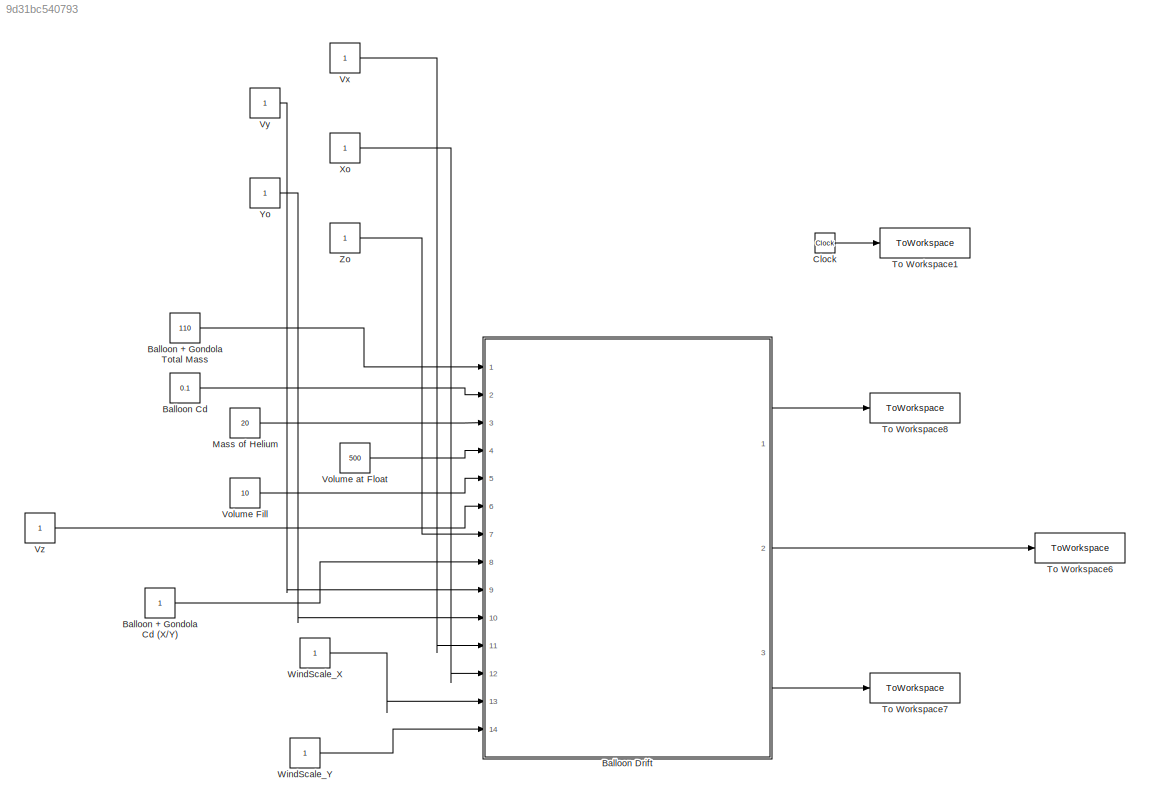
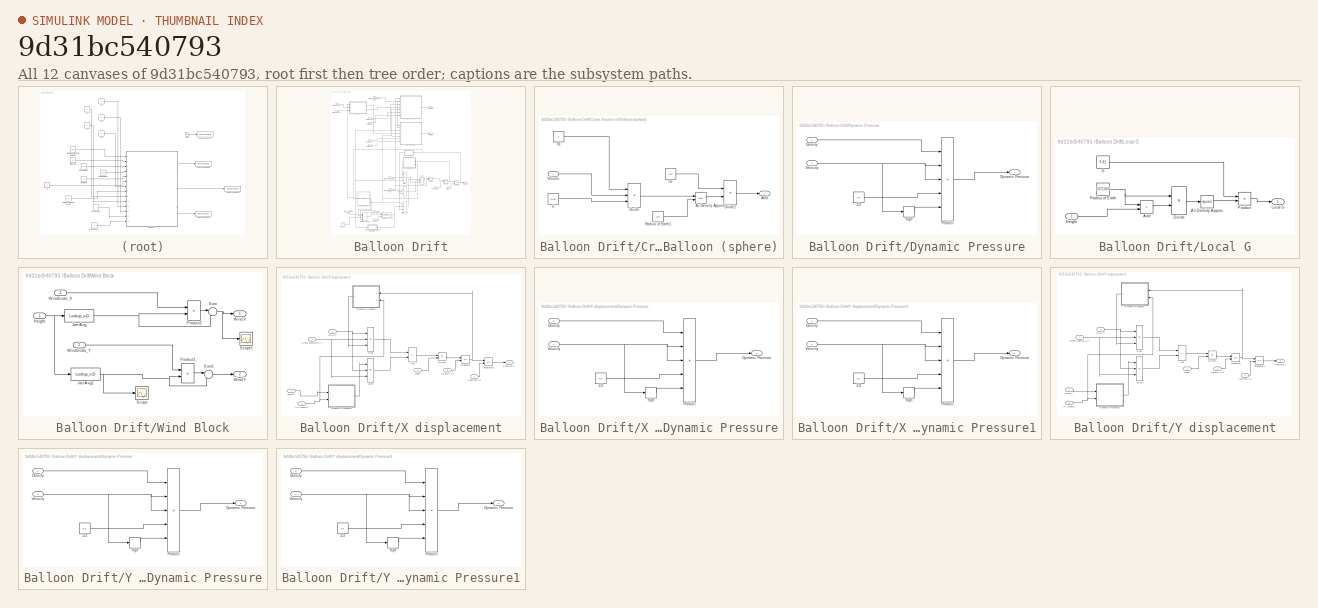
[diagram: thumbnail index - all 12 canvases of the model, root first then tree order]
MODEL slx_9d31bc540793
KIND model
CONFIG AbsTol = auto
CONFIG EnableMultiTasking = off
CONFIG FixedStep = 0.4
CONFIG MaxStep = auto
CONFIG MinStep = auto
CONFIG RelTol = 1e-3
CONFIG SampleTimeConstraint = Unconstrained
CONFIG Solver = VariableStepAuto
CONFIG SolverName = VariableStepAuto
CONFIG StartTime = 0.0
CONFIG StopTime = 1800
BLOCK [Constant] Balloon + Gondola Cd (X//Y)
BLOCK [Constant] Balloon + Gondola Total Mass
  Value = 110
BLOCK [Constant] Balloon Cd
  Value = 0.1
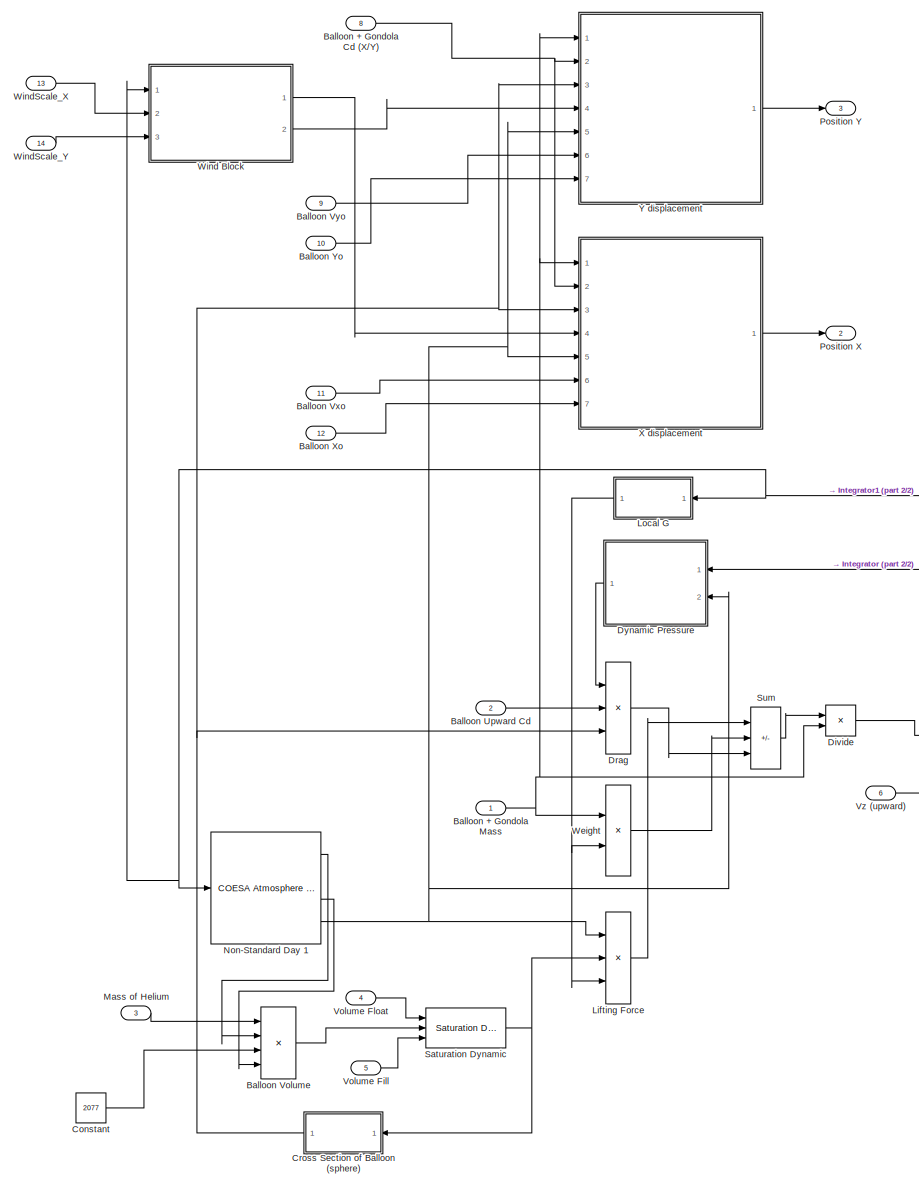
[diagram: Balloon Drift - part 1/2, most of the canvas]
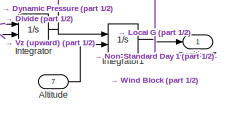
[diagram: Balloon Drift - part 2/2, middle right region]
BLOCK [SubSystem] Balloon Drift
  Ports = [14, 3]
  RequestExecContextInheritance = off
  TreatAsAtomicUnit = on
BLOCK [Inport] Balloon Drift/Altitude
  Port = 7
BLOCK [Inport] Balloon Drift/Balloon + Gondola Cd (X//Y)
  Port = 8
BLOCK [Inport] Balloon Drift/Balloon + Gondola Mass
BLOCK [Inport] Balloon Drift/Balloon Upward Cd
  Port = 2
BLOCK [Product] Balloon Drift/Balloon Volume
  Inputs = ***/
  Ports = [4, 1]
BLOCK [Inport] Balloon Drift/Balloon Vxo
  Port = 11
BLOCK [Inport] Balloon Drift/Balloon Vyo
  Port = 9
BLOCK [Inport] Balloon Drift/Balloon Xo
  Port = 12
BLOCK [Inport] Balloon Drift/Balloon Yo
  Port = 10
BLOCK [Constant] Balloon Drift/Constant
  Value = 2077
BLOCK [SubSystem] Balloon Drift/Cross Section of Balloon (sphere)
  Ports = [1, 1]
  RequestExecContextInheritance = off
BLOCK [Math] Balloon Drift/Cross Section of Balloon (sphere)/Air Density Approx.
  Operator = pow
  OutMax = 10000
  OutMin = 0
  Ports = [2, 1]
BLOCK [Outport] Balloon Drift/Cross Section of Balloon (sphere)/Area
  VectorParamsAs1DForOutWhenUnconnected = off
BLOCK [Product] Balloon Drift/Cross Section of Balloon (sphere)/Divide
  Inputs = **/
  Ports = [3, 1]
BLOCK [Product] Balloon Drift/Cross Section of Balloon (sphere)/Divide1
  Inputs = **
  Ports = [2, 1]
BLOCK [Constant] Balloon Drift/Cross Section of Balloon (sphere)/G
  Value = 12.56
BLOCK [Constant] Balloon Drift/Cross Section of Balloon (sphere)/G1
  Value = 3
BLOCK [Constant] Balloon Drift/Cross Section of Balloon (sphere)/G2
  Value = 3.14
BLOCK [Constant] Balloon Drift/Cross Section of Balloon (sphere)/Radius of Earth1
  Value = 2/3
BLOCK [Inport] Balloon Drift/Cross Section of Balloon (sphere)/Volume
BLOCK [Product] Balloon Drift/Divide
  Inputs = */
  Ports = [2, 1]
BLOCK [Product] Balloon Drift/Drag
  Inputs = 3
  Ports = [3, 1]
BLOCK [SubSystem] Balloon Drift/Dynamic Pressure
  Ports = [2, 1]
  RequestExecContextInheritance = off
  TreatAsAtomicUnit = on
BLOCK [Constant] Balloon Drift/Dynamic Pressure/1//2
  Value = 0.5
BLOCK [Inport] Balloon Drift/Dynamic Pressure/Density
  Port = 2
BLOCK [Outport] Balloon Drift/Dynamic Pressure/Dynamic Pressure
BLOCK [Product] Balloon Drift/Dynamic Pressure/Product
  Inputs = 5
  Ports = [5, 1]
BLOCK [Signum] Balloon Drift/Dynamic Pressure/Sign
BLOCK [Inport] Balloon Drift/Dynamic Pressure/Velocity 
BLOCK [Integrator] Balloon Drift/Integrator
  InitialConditionSource = external
  Ports = [2, 1]
BLOCK [Integrator] Balloon Drift/Integrator1
  InitialConditionSource = external
  Ports = [2, 1]
BLOCK [Product] Balloon Drift/Lifting Force
  Inputs = 3
  Ports = [3, 1]
BLOCK [SubSystem] Balloon Drift/Local G
  Ports = [1, 1]
  RequestExecContextInheritance = off
BLOCK [Sum] Balloon Drift/Local G/Add
  IconShape = rectangular
  Ports = [2, 1]
BLOCK [Math] Balloon Drift/Local G/Air Density Approx.
  Operator = square
  OutMax = 10000
  OutMin = 0
  Ports = [1, 1]
  SignedPower = on
BLOCK [Product] Balloon Drift/Local G/Divide
  Inputs = */
  Ports = [2, 1]
BLOCK [Constant] Balloon Drift/Local G/G
  Value = 9.81
BLOCK [Inport] Balloon Drift/Local G/Height
BLOCK [Outport] Balloon Drift/Local G/Local G
  VectorParamsAs1DForOutWhenUnconnected = off
BLOCK [Product] Balloon Drift/Local G/Product
  Ports = [2, 1]
BLOCK [Constant] Balloon Drift/Local G/Radius of Earth
  Value = 6371000
BLOCK [Inport] Balloon Drift/Mass of Helium
  Port = 3
BLOCK [Reference] Balloon Drift/Non-Standard Day 1  REF=aerolibatmos2/COESA Atmosphere Model
  Ports = [1, 4]
  SourceBlock = aerolibatmos2/COESA Atmosphere Model
  SourceProductBaseCode = AE
  SourceType = Atmosphere Model
BLOCK [Outport] Balloon Drift/Position X
  Port = 2
BLOCK [Outport] Balloon Drift/Position Y
  Port = 3
BLOCK [Outport] Balloon Drift/Position Z
BLOCK [Reference] Balloon Drift/Saturation Dynamic  REF=simulink/Discontinuities/Saturation
Dynamic
  Ports = [3, 1]
  SourceBlock = simulink/Discontinuities/Saturation\nDynamic
  SourceProductBaseCode = SL
  SourceType = Saturation Dynamic
BLOCK [Sum] Balloon Drift/Sum
  IconShape = rectangular
  Inputs = +--
  Ports = [3, 1]
BLOCK [Inport] Balloon Drift/Volume Fill
  Port = 5
BLOCK [Inport] Balloon Drift/Volume Float
  Port = 4
BLOCK [Inport] Balloon Drift/Vz (upward)
  Port = 6
BLOCK [Product] Balloon Drift/Weight
  Ports = [2, 1]
BLOCK [SubSystem] Balloon Drift/Wind Block
  Ports = [3, 2]
  RequestExecContextInheritance = off
  TreatAsAtomicUnit = on
BLOCK [Inport] Balloon Drift/Wind Block/Height
BLOCK [Lookup_n-D] Balloon Drift/Wind Block/Jan Avg
  BreakpointsForDimension1 = [0,5000,10000,15000,20000,24000,100000]
  ExtrapMethod = Clip
  IndexSearchMethod = Linear search
  InternalRulePriority = Speed
  InterpMethod = Cubic spline
  NumberOfTableDimensions = 1
  Ports = [1, 1]
  RndMeth = Simplest
  Table = [2,17,30,22,5,2,0]
  UseLastTableValue = on
BLOCK [Lookup_n-D] Balloon Drift/Wind Block/Jan Avg1
  BreakpointsForDimension1 = [0,5000,10000,15000,20000,24000,100000]
  ExtrapMethod = Clip
  InternalRulePriority = Speed
  InterpMethod = Cubic spline
  NumberOfTableDimensions = 1
  Ports = [1, 1]
  RndMeth = Simplest
  Table = [2,17,30,22,5,2,0]
  UseLastTableValue = on
BLOCK [Product] Balloon Drift/Wind Block/Product1
  Ports = [2, 1]
BLOCK [Product] Balloon Drift/Wind Block/Product2
  Ports = [2, 1]
BLOCK [Scope] Balloon Drift/Wind Block/Scope
  Floating = off
  NumInputPorts = 1
  Ports = [1]
  ScopeSpecificationString = Simulink.scopes.TimeScopeBlockCfg('CurrentConfiguration', extmgr.ConfigurationSet(extmgr.Configuration('Core','General UI',true),extmgr.Configuration('Core','Source UI',true),extmgr.Configuration('Sources','WiredSimulink',true,'DataLoggingVariableName','ScopeData10'),extmgr.Configuration('Visuals','Time Domain',true,'SerializedDisplays',{struct('MinYLimReal','-1.03996','MaxYLimReal','29.38818','YL...<+1405ch>
BLOCK [Scope] Balloon Drift/Wind Block/Scope1
  Floating = off
  NumInputPorts = 1
  Ports = [1]
  ScopeSpecificationString = Simulink.scopes.TimeScopeBlockCfg('CurrentConfiguration', extmgr.ConfigurationSet(extmgr.Configuration('Core','General UI',true),extmgr.Configuration('Core','Source UI',true),extmgr.Configuration('Sources','WiredSimulink',true,'DataLoggingVariableName','ScopeData11'),extmgr.Configuration('Visuals','Time Domain',true,'SerializedDisplays',{struct('MinYLimReal','-0.7338','MaxYLimReal','20.73634','YLa...<+1397ch>
BLOCK [Sum] Balloon Drift/Wind Block/Sum
  Inputs = |++
  Ports = [2, 1]
BLOCK [Sum] Balloon Drift/Wind Block/Sum1
  Inputs = |++
  Ports = [2, 1]
BLOCK [Outport] Balloon Drift/Wind Block/Wind X
BLOCK [Outport] Balloon Drift/Wind Block/Wind Y
  Port = 2
BLOCK [Inport] Balloon Drift/Wind Block/WindScale_X
  Port = 2
BLOCK [Inport] Balloon Drift/Wind Block/WindScale_Y
  Port = 3
BLOCK [Inport] Balloon Drift/WindScale_X
  Port = 13
BLOCK [Inport] Balloon Drift/WindScale_Y
  Port = 14
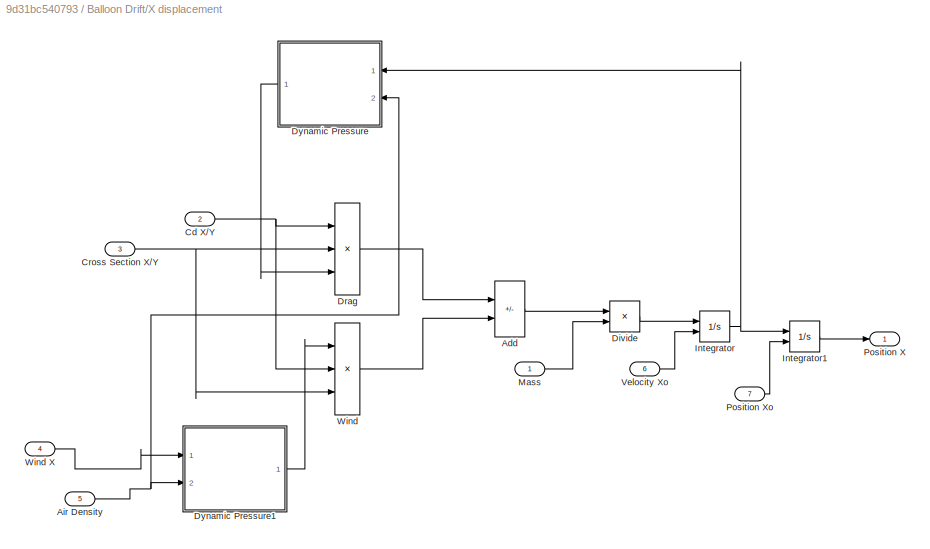
BLOCK [SubSystem] Balloon Drift/X displacement
  Ports = [7, 1]
  RequestExecContextInheritance = off
  TreatAsAtomicUnit = on
BLOCK [Sum] Balloon Drift/X displacement/Add
  IconShape = rectangular
  Inputs = -+
  Ports = [2, 1]
BLOCK [Inport] Balloon Drift/X displacement/Air Density
  Port = 5
BLOCK [Inport] Balloon Drift/X displacement/Cd X//Y
  Port = 2
BLOCK [Inport] Balloon Drift/X displacement/Cross Section X//Y
  Port = 3
BLOCK [Product] Balloon Drift/X displacement/Divide
  Inputs = */
  Ports = [2, 1]
BLOCK [Product] Balloon Drift/X displacement/Drag
  Inputs = 3
  Ports = [3, 1]
BLOCK [SubSystem] Balloon Drift/X displacement/Dynamic Pressure
  Ports = [2, 1]
  RequestExecContextInheritance = off
  TreatAsAtomicUnit = on
BLOCK [Constant] Balloon Drift/X displacement/Dynamic Pressure/1//2
  Value = 0.5
BLOCK [Inport] Balloon Drift/X displacement/Dynamic Pressure/Density
  Port = 2
BLOCK [Outport] Balloon Drift/X displacement/Dynamic Pressure/Dynamic Pressure
BLOCK [Product] Balloon Drift/X displacement/Dynamic Pressure/Product
  Inputs = 5
  Ports = [5, 1]
BLOCK [Signum] Balloon Drift/X displacement/Dynamic Pressure/Sign
BLOCK [Inport] Balloon Drift/X displacement/Dynamic Pressure/Velocity 
BLOCK [SubSystem] Balloon Drift/X displacement/Dynamic Pressure1
  Ports = [2, 1]
  RequestExecContextInheritance = off
  TreatAsAtomicUnit = on
BLOCK [Constant] Balloon Drift/X displacement/Dynamic Pressure1/1//2
  Value = 0.5
BLOCK [Inport] Balloon Drift/X displacement/Dynamic Pressure1/Density
  Port = 2
BLOCK [Outport] Balloon Drift/X displacement/Dynamic Pressure1/Dynamic Pressure
BLOCK [Product] Balloon Drift/X displacement/Dynamic Pressure1/Product
  Inputs = 5
  Ports = [5, 1]
BLOCK [Signum] Balloon Drift/X displacement/Dynamic Pressure1/Sign
BLOCK [Inport] Balloon Drift/X displacement/Dynamic Pressure1/Velocity 
BLOCK [Integrator] Balloon Drift/X displacement/Integrator
  InitialConditionSource = external
  Ports = [2, 1]
BLOCK [Integrator] Balloon Drift/X displacement/Integrator1
  InitialConditionSource = external
  Ports = [2, 1]
BLOCK [Inport] Balloon Drift/X displacement/Mass
BLOCK [Outport] Balloon Drift/X displacement/Position X
BLOCK [Inport] Balloon Drift/X displacement/Position Xo
  Port = 7
BLOCK [Inport] Balloon Drift/X displacement/Velocity Xo
  Port = 6
BLOCK [Product] Balloon Drift/X displacement/Wind
  Inputs = 3
  Ports = [3, 1]
BLOCK [Inport] Balloon Drift/X displacement/Wind X
  Port = 4
BLOCK [SubSystem] Balloon Drift/Y displacement
  Ports = [7, 1]
  RequestExecContextInheritance = off
  TreatAsAtomicUnit = on
BLOCK [Sum] Balloon Drift/Y displacement/Add
  IconShape = rectangular
  Inputs = -+
  Ports = [2, 1]
BLOCK [Inport] Balloon Drift/Y displacement/Air Density
  Port = 5
BLOCK [Inport] Balloon Drift/Y displacement/Cd X//Y
  Port = 2
BLOCK [Inport] Balloon Drift/Y displacement/Cross Section X//Y
  Port = 3
BLOCK [Product] Balloon Drift/Y displacement/Divide
  Inputs = */
  Ports = [2, 1]
BLOCK [Product] Balloon Drift/Y displacement/Drag
  Inputs = 3
  Ports = [3, 1]
BLOCK [SubSystem] Balloon Drift/Y displacement/Dynamic Pressure
  Ports = [2, 1]
  RequestExecContextInheritance = off
  TreatAsAtomicUnit = on
BLOCK [Constant] Balloon Drift/Y displacement/Dynamic Pressure/1//2
  Value = 0.5
BLOCK [Inport] Balloon Drift/Y displacement/Dynamic Pressure/Density
  Port = 2
BLOCK [Outport] Balloon Drift/Y displacement/Dynamic Pressure/Dynamic Pressure
BLOCK [Product] Balloon Drift/Y displacement/Dynamic Pressure/Product
  Inputs = 5
  Ports = [5, 1]
BLOCK [Signum] Balloon Drift/Y displacement/Dynamic Pressure/Sign
BLOCK [Inport] Balloon Drift/Y displacement/Dynamic Pressure/Velocity 
BLOCK [SubSystem] Balloon Drift/Y displacement/Dynamic Pressure1
  Ports = [2, 1]
  RequestExecContextInheritance = off
  TreatAsAtomicUnit = on
BLOCK [Constant] Balloon Drift/Y displacement/Dynamic Pressure1/1//2
  Value = 0.5
BLOCK [Inport] Balloon Drift/Y displacement/Dynamic Pressure1/Density
  Port = 2
BLOCK [Outport] Balloon Drift/Y displacement/Dynamic Pressure1/Dynamic Pressure
BLOCK [Product] Balloon Drift/Y displacement/Dynamic Pressure1/Product
  Inputs = 5
  Ports = [5, 1]
BLOCK [Signum] Balloon Drift/Y displacement/Dynamic Pressure1/Sign
BLOCK [Inport] Balloon Drift/Y displacement/Dynamic Pressure1/Velocity 
BLOCK [Integrator] Balloon Drift/Y displacement/Integrator
  InitialConditionSource = external
  Ports = [2, 1]
BLOCK [Integrator] Balloon Drift/Y displacement/Integrator1
  InitialConditionSource = external
  Ports = [2, 1]
BLOCK [Inport] Balloon Drift/Y displacement/Mass
BLOCK [Outport] Balloon Drift/Y displacement/Position Y
BLOCK [Inport] Balloon Drift/Y displacement/Position Yo
  Port = 7
BLOCK [Inport] Balloon Drift/Y displacement/Velocity Yo
  Port = 6
BLOCK [Product] Balloon Drift/Y displacement/Wind
  Inputs = 3
  Ports = [3, 1]
BLOCK [Inport] Balloon Drift/Y displacement/Wind Y
  Port = 4
BLOCK [Clock] Clock
BLOCK [Constant] Mass of Helium
  Value = 20
BLOCK [ToWorkspace] To Workspace1
  FixptAsFi = on
  MaxDataPoints = inf
  Ports = [1]
  SampleTime = -1
  VariableName = Balloon_Time
BLOCK [ToWorkspace] To Workspace6
  FixptAsFi = on
  MaxDataPoints = inf
  Ports = [1]
  SampleTime = -1
  VariableName = Balloon_X
BLOCK [ToWorkspace] To Workspace7
  FixptAsFi = on
  MaxDataPoints = inf
  Ports = [1]
  SampleTime = -1
  VariableName = Balloon_Y
BLOCK [ToWorkspace] To Workspace8
  FixptAsFi = on
  MaxDataPoints = inf
  Ports = [1]
  SampleTime = -1
  VariableName = Balloon_Z
BLOCK [Constant] Volume Fill
  Value = 10
BLOCK [Constant] Volume at Float
  Value = 500
BLOCK [Constant] Vx
BLOCK [Constant] Vy
BLOCK [Constant] Vz
BLOCK [Constant] WindScale_X
BLOCK [Constant] WindScale_Y
BLOCK [Constant] Xo
BLOCK [Constant] Yo
BLOCK [Constant] Zo
LINE Balloon + Gondola Cd (X//Y):1 -> Balloon Drift:8
LINE Balloon + Gondola Total Mass:1 -> Balloon Drift:1
LINE Balloon Cd:1 -> Balloon Drift:2
LINE Balloon Drift/Altitude:1 -> Balloon Drift/Integrator1:2
NET Balloon Drift/Balloon + Gondola Cd (X//Y):1 -> Balloon Drift/X displacement:2, Balloon Drift/Y displacement:2
NET Balloon Drift/Balloon + Gondola Mass:1 -> Balloon Drift/Divide:2, Balloon Drift/Weight:1, Balloon Drift/X displacement:1, Balloon Drift/Y displacement:1
LINE Balloon Drift/Balloon Upward Cd:1 -> Balloon Drift/Drag:2
LINE Balloon Drift/Balloon Volume:1 -> Balloon Drift/Saturation Dynamic:2
LINE Balloon Drift/Balloon Vxo:1 -> Balloon Drift/X displacement:6
LINE Balloon Drift/Balloon Vyo:1 -> Balloon Drift/Y displacement:6
LINE Balloon Drift/Balloon Xo:1 -> Balloon Drift/X displacement:7
LINE Balloon Drift/Balloon Yo:1 -> Balloon Drift/Y displacement:7
LINE Balloon Drift/Constant:1 -> Balloon Drift/Balloon Volume:3
LINE Balloon Drift/Cross Section of Balloon (sphere)/Air Density Approx.:1 -> Balloon Drift/Cross Section of Balloon (sphere)/Divide1:2
LINE Balloon Drift/Cross Section of Balloon (sphere)/Divide1:1 -> Balloon Drift/Cross Section of Balloon (sphere)/Area:1
LINE Balloon Drift/Cross Section of Balloon (sphere)/Divide:1 -> Balloon Drift/Cross Section of Balloon (sphere)/Air Density Approx.:1
LINE Balloon Drift/Cross Section of Balloon (sphere)/G1:1 -> Balloon Drift/Cross Section of Balloon (sphere)/Divide:1
LINE Balloon Drift/Cross Section of Balloon (sphere)/G2:1 -> Balloon Drift/Cross Section of Balloon (sphere)/Divide1:1
LINE Balloon Drift/Cross Section of Balloon (sphere)/G:1 -> Balloon Drift/Cross Section of Balloon (sphere)/Divide:3
LINE Balloon Drift/Cross Section of Balloon (sphere)/Radius of Earth1:1 -> Balloon Drift/Cross Section of Balloon (sphere)/Air Density Approx.:2
LINE Balloon Drift/Cross Section of Balloon (sphere)/Volume:1 -> Balloon Drift/Cross Section of Balloon (sphere)/Divide:2
NET Balloon Drift/Cross Section of Balloon (sphere):1 -> Balloon Drift/Drag:3, Balloon Drift/X displacement:3, Balloon Drift/Y displacement:3
LINE Balloon Drift/Divide:1 -> Balloon Drift/Integrator:1
LINE Balloon Drift/Drag:1 -> Balloon Drift/Sum:3
LINE Balloon Drift/Dynamic Pressure/1//2:1 -> Balloon Drift/Dynamic Pressure/Product:4
LINE Balloon Drift/Dynamic Pressure/Density:1 -> Balloon Drift/Dynamic Pressure/Product:1
LINE Balloon Drift/Dynamic Pressure/Product:1 -> Balloon Drift/Dynamic Pressure/Dynamic Pressure:1
LINE Balloon Drift/Dynamic Pressure/Sign:1 -> Balloon Drift/Dynamic Pressure/Product:5
NET Balloon Drift/Dynamic Pressure/Velocity :1 -> Balloon Drift/Dynamic Pressure/Product:2, Balloon Drift/Dynamic Pressure/Product:3, Balloon Drift/Dynamic Pressure/Sign:1
LINE Balloon Drift/Dynamic Pressure:1 -> Balloon Drift/Drag:1
NET Balloon Drift/Integrator1:1 -> Balloon Drift/Local G:1, Balloon Drift/Non-Standard Day 1:1, Balloon Drift/Position Z:1, Balloon Drift/Wind Block:1
NET Balloon Drift/Integrator:1 -> Balloon Drift/Dynamic Pressure:1, Balloon Drift/Integrator1:1
LINE Balloon Drift/Lifting Force:1 -> Balloon Drift/Sum:1
LINE Balloon Drift/Local G/Add:1 -> Balloon Drift/Local G/Divide:2
LINE Balloon Drift/Local G/Air Density Approx.:1 -> Balloon Drift/Local G/Product:2
LINE Balloon Drift/Local G/Divide:1 -> Balloon Drift/Local G/Air Density Approx.:1
LINE Balloon Drift/Local G/G:1 -> Balloon Drift/Local G/Product:1
LINE Balloon Drift/Local G/Height:1 -> Balloon Drift/Local G/Add:2
LINE Balloon Drift/Local G/Product:1 -> Balloon Drift/Local G/Local G:1
NET Balloon Drift/Local G/Radius of Earth:1 -> Balloon Drift/Local G/Add:1, Balloon Drift/Local G/Divide:1
NET Balloon Drift/Local G:1 -> Balloon Drift/Lifting Force:3, Balloon Drift/Weight:2
LINE Balloon Drift/Mass of Helium:1 -> Balloon Drift/Balloon Volume:1
LINE Balloon Drift/Non-Standard Day 1:1 -> Balloon Drift/Balloon Volume:2
LINE Balloon Drift/Non-Standard Day 1:3 -> Balloon Drift/Balloon Volume:4
NET Balloon Drift/Non-Standard Day 1:4 -> Balloon Drift/Dynamic Pressure:2, Balloon Drift/Lifting Force:1, Balloon Drift/X displacement:5, Balloon Drift/Y displacement:5
NET Balloon Drift/Saturation Dynamic:1 -> Balloon Drift/Cross Section of Balloon (sphere):1, Balloon Drift/Lifting Force:2
LINE Balloon Drift/Sum:1 -> Balloon Drift/Divide:1
LINE Balloon Drift/Volume Fill:1 -> Balloon Drift/Saturation Dynamic:3
LINE Balloon Drift/Volume Float:1 -> Balloon Drift/Saturation Dynamic:1
LINE Balloon Drift/Vz (upward):1 -> Balloon Drift/Integrator:2
LINE Balloon Drift/Weight:1 -> Balloon Drift/Sum:2
NET Balloon Drift/Wind Block/Height:1 -> Balloon Drift/Wind Block/Jan Avg1:1, Balloon Drift/Wind Block/Jan Avg:1
NET Balloon Drift/Wind Block/Jan Avg1:1 -> Balloon Drift/Wind Block/Product1:2, Balloon Drift/Wind Block/Scope:1, Balloon Drift/Wind Block/Sum1:2
NET Balloon Drift/Wind Block/Jan Avg:1 -> Balloon Drift/Wind Block/Product2:2, Balloon Drift/Wind Block/Sum:2
LINE Balloon Drift/Wind Block/Product1:1 -> Balloon Drift/Wind Block/Sum1:1
LINE Balloon Drift/Wind Block/Product2:1 -> Balloon Drift/Wind Block/Sum:1
LINE Balloon Drift/Wind Block/Sum1:1 -> Balloon Drift/Wind Block/Wind Y:1
NET Balloon Drift/Wind Block/Sum:1 -> Balloon Drift/Wind Block/Scope1:1, Balloon Drift/Wind Block/Wind X:1
LINE Balloon Drift/Wind Block/WindScale_X:1 -> Balloon Drift/Wind Block/Product2:1
LINE Balloon Drift/Wind Block/WindScale_Y:1 -> Balloon Drift/Wind Block/Product1:1
LINE Balloon Drift/Wind Block:1 -> Balloon Drift/X displacement:4
LINE Balloon Drift/Wind Block:2 -> Balloon Drift/Y displacement:4
LINE Balloon Drift/WindScale_X:1 -> Balloon Drift/Wind Block:2
LINE Balloon Drift/WindScale_Y:1 -> Balloon Drift/Wind Block:3
LINE Balloon Drift/X displacement/Add:1 -> Balloon Drift/X displacement/Divide:1
NET Balloon Drift/X displacement/Air Density:1 -> Balloon Drift/X displacement/Dynamic Pressure1:2, Balloon Drift/X displacement/Dynamic Pressure:2
NET Balloon Drift/X displacement/Cd X//Y:1 -> Balloon Drift/X displacement/Drag:1, Balloon Drift/X displacement/Wind:2
NET Balloon Drift/X displacement/Cross Section X//Y:1 -> Balloon Drift/X displacement/Drag:2, Balloon Drift/X displacement/Wind:3
LINE Balloon Drift/X displacement/Divide:1 -> Balloon Drift/X displacement/Integrator:1
LINE Balloon Drift/X displacement/Drag:1 -> Balloon Drift/X displacement/Add:1
LINE Balloon Drift/X displacement/Dynamic Pressure/1//2:1 -> Balloon Drift/X displacement/Dynamic Pressure/Product:4
LINE Balloon Drift/X displacement/Dynamic Pressure/Density:1 -> Balloon Drift/X displacement/Dynamic Pressure/Product:1
LINE Balloon Drift/X displacement/Dynamic Pressure/Product:1 -> Balloon Drift/X displacement/Dynamic Pressure/Dynamic Pressure:1
LINE Balloon Drift/X displacement/Dynamic Pressure/Sign:1 -> Balloon Drift/X displacement/Dynamic Pressure/Product:5
NET Balloon Drift/X displacement/Dynamic Pressure/Velocity :1 -> Balloon Drift/X displacement/Dynamic Pressure/Product:2, Balloon Drift/X displacement/Dynamic Pressure/Product:3, Balloon Drift/X displacement/Dynamic Pressure/Sign:1
LINE Balloon Drift/X displacement/Dynamic Pressure1/1//2:1 -> Balloon Drift/X displacement/Dynamic Pressure1/Product:4
LINE Balloon Drift/X displacement/Dynamic Pressure1/Density:1 -> Balloon Drift/X displacement/Dynamic Pressure1/Product:1
LINE Balloon Drift/X displacement/Dynamic Pressure1/Product:1 -> Balloon Drift/X displacement/Dynamic Pressure1/Dynamic Pressure:1
LINE Balloon Drift/X displacement/Dynamic Pressure1/Sign:1 -> Balloon Drift/X displacement/Dynamic Pressure1/Product:5
NET Balloon Drift/X displacement/Dynamic Pressure1/Velocity :1 -> Balloon Drift/X displacement/Dynamic Pressure1/Product:2, Balloon Drift/X displacement/Dynamic Pressure1/Product:3, Balloon Drift/X displacement/Dynamic Pressure1/Sign:1
LINE Balloon Drift/X displacement/Dynamic Pressure1:1 -> Balloon Drift/X displacement/Wind:1
LINE Balloon Drift/X displacement/Dynamic Pressure:1 -> Balloon Drift/X displacement/Drag:3
LINE Balloon Drift/X displacement/Integrator1:1 -> Balloon Drift/X displacement/Position X:1
NET Balloon Drift/X displacement/Integrator:1 -> Balloon Drift/X displacement/Dynamic Pressure:1, Balloon Drift/X displacement/Integrator1:1
LINE Balloon Drift/X displacement/Mass:1 -> Balloon Drift/X displacement/Divide:2
LINE Balloon Drift/X displacement/Position Xo:1 -> Balloon Drift/X displacement/Integrator1:2
LINE Balloon Drift/X displacement/Velocity Xo:1 -> Balloon Drift/X displacement/Integrator:2
LINE Balloon Drift/X displacement/Wind X:1 -> Balloon Drift/X displacement/Dynamic Pressure1:1
LINE Balloon Drift/X displacement/Wind:1 -> Balloon Drift/X displacement/Add:2
LINE Balloon Drift/X displacement:1 -> Balloon Drift/Position X:1
LINE Balloon Drift/Y displacement/Add:1 -> Balloon Drift/Y displacement/Divide:1
NET Balloon Drift/Y displacement/Air Density:1 -> Balloon Drift/Y displacement/Dynamic Pressure1:2, Balloon Drift/Y displacement/Dynamic Pressure:2
NET Balloon Drift/Y displacement/Cd X//Y:1 -> Balloon Drift/Y displacement/Drag:1, Balloon Drift/Y displacement/Wind:2
NET Balloon Drift/Y displacement/Cross Section X//Y:1 -> Balloon Drift/Y displacement/Drag:2, Balloon Drift/Y displacement/Wind:3
LINE Balloon Drift/Y displacement/Divide:1 -> Balloon Drift/Y displacement/Integrator:1
LINE Balloon Drift/Y displacement/Drag:1 -> Balloon Drift/Y displacement/Add:1
LINE Balloon Drift/Y displacement/Dynamic Pressure/1//2:1 -> Balloon Drift/Y displacement/Dynamic Pressure/Product:4
LINE Balloon Drift/Y displacement/Dynamic Pressure/Density:1 -> Balloon Drift/Y displacement/Dynamic Pressure/Product:1
LINE Balloon Drift/Y displacement/Dynamic Pressure/Product:1 -> Balloon Drift/Y displacement/Dynamic Pressure/Dynamic Pressure:1
LINE Balloon Drift/Y displacement/Dynamic Pressure/Sign:1 -> Balloon Drift/Y displacement/Dynamic Pressure/Product:5
NET Balloon Drift/Y displacement/Dynamic Pressure/Velocity :1 -> Balloon Drift/Y displacement/Dynamic Pressure/Product:2, Balloon Drift/Y displacement/Dynamic Pressure/Product:3, Balloon Drift/Y displacement/Dynamic Pressure/Sign:1
LINE Balloon Drift/Y displacement/Dynamic Pressure1/1//2:1 -> Balloon Drift/Y displacement/Dynamic Pressure1/Product:4
LINE Balloon Drift/Y displacement/Dynamic Pressure1/Density:1 -> Balloon Drift/Y displacement/Dynamic Pressure1/Product:1
LINE Balloon Drift/Y displacement/Dynamic Pressure1/Product:1 -> Balloon Drift/Y displacement/Dynamic Pressure1/Dynamic Pressure:1
LINE Balloon Drift/Y displacement/Dynamic Pressure1/Sign:1 -> Balloon Drift/Y displacement/Dynamic Pressure1/Product:5
NET Balloon Drift/Y displacement/Dynamic Pressure1/Velocity :1 -> Balloon Drift/Y displacement/Dynamic Pressure1/Product:2, Balloon Drift/Y displacement/Dynamic Pressure1/Product:3, Balloon Drift/Y displacement/Dynamic Pressure1/Sign:1
LINE Balloon Drift/Y displacement/Dynamic Pressure1:1 -> Balloon Drift/Y displacement/Wind:1
LINE Balloon Drift/Y displacement/Dynamic Pressure:1 -> Balloon Drift/Y displacement/Drag:3
LINE Balloon Drift/Y displacement/Integrator1:1 -> Balloon Drift/Y displacement/Position Y:1
NET Balloon Drift/Y displacement/Integrator:1 -> Balloon Drift/Y displacement/Dynamic Pressure:1, Balloon Drift/Y displacement/Integrator1:1
LINE Balloon Drift/Y displacement/Mass:1 -> Balloon Drift/Y displacement/Divide:2
LINE Balloon Drift/Y displacement/Position Yo:1 -> Balloon Drift/Y displacement/Integrator1:2
LINE Balloon Drift/Y displacement/Velocity Yo:1 -> Balloon Drift/Y displacement/Integrator:2
LINE Balloon Drift/Y displacement/Wind Y:1 -> Balloon Drift/Y displacement/Dynamic Pressure1:1
LINE Balloon Drift/Y displacement/Wind:1 -> Balloon Drift/Y displacement/Add:2
LINE Balloon Drift/Y displacement:1 -> Balloon Drift/Position Y:1
LINE Balloon Drift:1 -> To Workspace8:1
LINE Balloon Drift:2 -> To Workspace6:1
LINE Balloon Drift:3 -> To Workspace7:1
LINE Clock:1 -> To Workspace1:1
LINE Mass of Helium:1 -> Balloon Drift:3
LINE Volume Fill:1 -> Balloon Drift:5
LINE Volume at Float:1 -> Balloon Drift:4
LINE Vx:1 -> Balloon Drift:11
LINE Vy:1 -> Balloon Drift:9
LINE Vz:1 -> Balloon Drift:6
LINE WindScale_X:1 -> Balloon Drift:13
LINE WindScale_Y:1 -> Balloon Drift:14
LINE Xo:1 -> Balloon Drift:12
LINE Yo:1 -> Balloon Drift:10
LINE Zo:1 -> Balloon Drift:7
note: NET lines group one-source signal fan-out (src -> all destinations, sorted); 1:1 wires keep LINE
